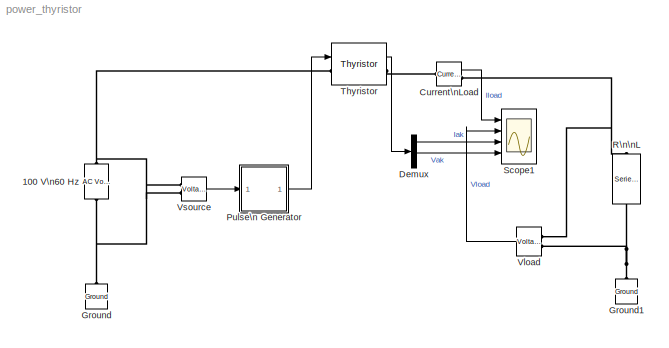
MODEL power_thyristor
KIND model
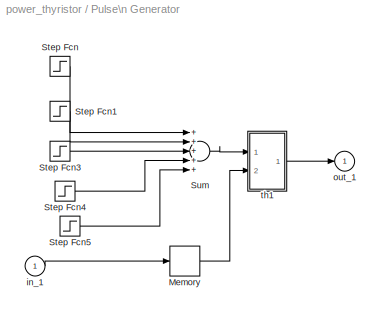
BLOCK [SubSystem]  Pulse\n Generator
  MaskDisplay = plot(0,0,100,100,[90,75,75,60,60,35,35,20,20,10],[20,20,80,80,20,20,80,80,20,20])
  MaskIconFrame = on
  MaskIconOpaque = on
  MaskIconRotate = none
  MaskIconUnits = autoscale
  MinAlgLoopOccurrences = off
  Ports = [1, 1]
  RTWSystemCode = Auto
  ShowPortLabels = off
  TreatAsAtomicUnit = off
BLOCK [Memory]  Pulse\n Generator/Memory
BLOCK [Step]  Pulse\n Generator/Step Fcn
  After = 20
  Before = 20
  SampleTime = 0
  Time = 1/60
BLOCK [Step]  Pulse\n Generator/Step Fcn1
  After = 30
  SampleTime = 0
  Time = 1/60
BLOCK [Step]  Pulse\n Generator/Step Fcn3
  After = 30
  SampleTime = 0
  Time = 2/60
BLOCK [Step]  Pulse\n Generator/Step Fcn4
  After = 30
  SampleTime = 0
  Time = 3/60
BLOCK [Step]  Pulse\n Generator/Step Fcn5
  After = 30
  SampleTime = 0
  Time = 4/60
BLOCK [Sum]  Pulse\n Generator/Sum
  Inputs = +++++
  Ports = [5, 1]
BLOCK [Inport]  Pulse\n Generator/in_1
  IconDisplay = Port number
  LatchInput = off
  Port = 1
BLOCK [Outport]  Pulse\n Generator/out_1
  IconDisplay = Port number
  InitialOutput = 0
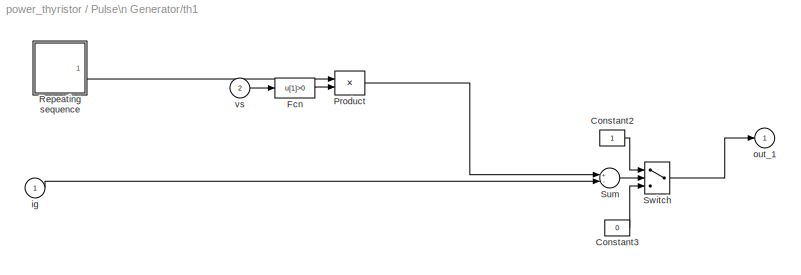
BLOCK [SubSystem]  Pulse\n Generator/th1
  MinAlgLoopOccurrences = off
  Ports = [2, 1]
  RTWSystemCode = Auto
  ShowPortLabels = off
  TreatAsAtomicUnit = off
BLOCK [Constant]  Pulse\n Generator/th1/Constant2
BLOCK [Constant]  Pulse\n Generator/th1/Constant3
  Value = 0
BLOCK [Fcn]  Pulse\n Generator/th1/Fcn
  Expr = u[1]>0
BLOCK [Product]  Pulse\n Generator/th1/Product
  Ports = [2, 1]
  RndMeth = Floor
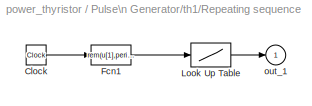
BLOCK [SubSystem]  Pulse\n Generator/th1/Repeating sequence
  MaskCallbackString = |
  MaskDescription = Repeating table.\nEnter values of time and output for first cycle.
  MaskDisplay = plot([t,t+period,t+2*period],[y,y,y])
  MaskEnableString = on,on
  MaskHelp = Repeats cycle given in table. Time values should be monotonically increasing.
  MaskIconFrame = on
  MaskIconOpaque = on
  MaskIconRotate = none
  MaskIconUnits = autoscale
  MaskInitialization = period = max(@1); t = @1; y = @2;
  MaskPromptString = Time values:|Output values:
  MaskStyleString = edit,edit
  MaskTabNameString = ,
  MaskToolTipString = on,on
  MaskTunableValueString = on,on
  MaskType = Repeating table
  MaskValueString = [0 1/60 ]|[0 360 ]
  MaskVarAliasString = ,
  MaskVisibilityString = on,on
  MinAlgLoopOccurrences = off
  Ports = [0, 1]
  RTWSystemCode = Auto
  ShowPortLabels = off
  TreatAsAtomicUnit = off
BLOCK [Clock]  Pulse\n Generator/th1/Repeating sequence/Clock
  Decimation = 10
BLOCK [Fcn]  Pulse\n Generator/th1/Repeating sequence/Fcn1
  Expr = rem(u[1],period)
BLOCK [Lookup]  Pulse\n Generator/th1/Repeating sequence/Look Up Table
  DialogController = Simulink.DDGSource
  InputValues = t
  OutputValues = y
BLOCK [Outport]  Pulse\n Generator/th1/Repeating sequence/out_1
  IconDisplay = Port number
  InitialOutput = 0
BLOCK [Sum]  Pulse\n Generator/th1/Sum
  Inputs = +-
  Ports = [2, 1]
BLOCK [Switch]  Pulse\n Generator/th1/Switch
BLOCK [Inport]  Pulse\n Generator/th1/ig
  IconDisplay = Port number
  LatchInput = off
  Port = 1
BLOCK [Outport]  Pulse\n Generator/th1/out_1
  IconDisplay = Port number
  InitialOutput = 0
BLOCK [Inport]  Pulse\n Generator/th1/vs
  IconDisplay = Port number
  LatchInput = off
  Port = 2
BLOCK [Reference] 100 V\n60 Hz  REF=powerlib/Electrical\nSources/AC Voltage Source
  Amplitude = 100
  AttributesFormatString = \\n
  Description = source block
  Frequency = 60
  Measurements = None
  Phase = 0
  Ports = [0, 0, 0, 0, 0, 1, 1]
  SampleTime = 0
  SourceBlock = powerlib/Electrical\nSources/AC Voltage Source
  SourceType = AC Voltage Source
BLOCK [Reference] Current\nLoad  REF=powerlib/Measurements/Current Measurement
  AttributesFormatString = \\n
  OutputType = Magnitude
  PSBequivalent = 0
  PhasorSimulation = off
  Ports = [0, 1, 0, 0, 0, 1, 1]
  SourceBlock = powerlib/Measurements/Current Measurement
  SourceType = Current Measurement
  Tag = PoWeRsYsTeMmEaSuReMeNt
BLOCK [Demux] Demux
  Outputs = 2
  Ports = [1, 2]
BLOCK [Reference] Ground  REF=powerlib/Elements/Ground
  AttributesFormatString = \\n
  LConnTagsString = a
  PhysicalDomain = powersysdomain
  PortType = p1
  Ports = [0, 0, 0, 0, 0, 1]
  SourceBlock = powerlib/Elements/Ground
  SourceType = Ground
  SubClassName = unknown
BLOCK [Reference] Ground1  REF=powerlib/Elements/Ground
  AttributesFormatString = \\n
  LConnTagsString = a
  PhysicalDomain = powersysdomain
  PortType = p1
  Ports = [0, 0, 0, 0, 0, 1]
  SourceBlock = powerlib/Elements/Ground
  SourceType = Ground
  SubClassName = unknown
BLOCK [Reference] R\n\nL  REF=powerlib/Elements/Series RLC Branch
  AttributesFormatString = \\n
  Capacitance = inf
  Inductance = 10e-03
  LConnTagsString = __new0
  Measurements = None
  PhysicalDomain = powersysdomain
  PortType = p1
  Ports = [0, 0, 0, 0, 0, 1, 1]
  RConnTagsString = __new0
  Resistance = 1
  SourceBlock = powerlib/Elements/Series RLC Branch
  SourceType = Series RLC Branch
  SubClassName = unknown
BLOCK [Scope] Scope1
  DataFormat = Array
  LimitDataPoints = off
  NumInputPorts = 4
  Ports = [4]
  TimeRange = 0.1
  YMax = 50~100~40~200
  YMin = -50~-100~0~-200
BLOCK [Reference] Thyristor  REF=powerlib/Power\nElectronics/Thyristor
  AttributesFormatString = \\n
  Cs = 4e-6
  IC = 0
  Lon = 0
  Measurements = on
  Ports = [1, 1, 0, 0, 0, 1, 1]
  Ron = 1e-3
  Rs = 20
  SourceBlock = powerlib/Power\nElectronics/Thyristor
  SourceType = Thyristor
  Vf = 0.8
BLOCK [Reference] Vload  REF=powerlib/Measurements/Voltage Measurement
  AttributesFormatString = \\n
  OutputType = Magnitude
  PSBequivalent = 0
  PhasorSimulation = off
  Ports = [0, 1, 0, 0, 0, 2]
  SourceBlock = powerlib/Measurements/Voltage Measurement
  SourceType = Voltage Measurement
  Tag = PoWeRsYsTeMmEaSuReMeNt
BLOCK [Reference] Vsource  REF=powerlib/Measurements/Voltage Measurement
  AttributesFormatString = \\n
  OutputType = Magnitude
  PSBequivalent = 0
  PhasorSimulation = off
  Ports = [0, 1, 0, 0, 0, 2]
  SourceBlock = powerlib/Measurements/Voltage Measurement
  SourceType = Voltage Measurement
  Tag = PoWeRsYsTeMmEaSuReMeNt
LINE  Pulse\n Generator/Memory:1 ->  Pulse\n Generator/th1:2
LINE  Pulse\n Generator/Step Fcn1:1 ->  Pulse\n Generator/Sum:2
LINE  Pulse\n Generator/Step Fcn3:1 ->  Pulse\n Generator/Sum:3
LINE  Pulse\n Generator/Step Fcn4:1 ->  Pulse\n Generator/Sum:4
LINE  Pulse\n Generator/Step Fcn5:1 ->  Pulse\n Generator/Sum:5
LINE  Pulse\n Generator/Step Fcn:1 ->  Pulse\n Generator/Sum:1
LINE  Pulse\n Generator/Sum:1 ->  Pulse\n Generator/th1:1
LINE  Pulse\n Generator/in_1:1 ->  Pulse\n Generator/Memory:1
LINE  Pulse\n Generator/th1/Constant2:1 ->  Pulse\n Generator/th1/Switch:1
LINE  Pulse\n Generator/th1/Constant3:1 ->  Pulse\n Generator/th1/Switch:3
LINE  Pulse\n Generator/th1/Fcn:1 ->  Pulse\n Generator/th1/Product:2
LINE  Pulse\n Generator/th1/Product:1 ->  Pulse\n Generator/th1/Sum:1
LINE  Pulse\n Generator/th1/Repeating sequence/Clock:1 ->  Pulse\n Generator/th1/Repeating sequence/Fcn1:1
LINE  Pulse\n Generator/th1/Repeating sequence/Fcn1:1 ->  Pulse\n Generator/th1/Repeating sequence/Look Up Table:1
LINE  Pulse\n Generator/th1/Repeating sequence/Look Up Table:1 ->  Pulse\n Generator/th1/Repeating sequence/out_1:1
LINE  Pulse\n Generator/th1/Repeating sequence:1 ->  Pulse\n Generator/th1/Product:1
LINE  Pulse\n Generator/th1/Sum:1 ->  Pulse\n Generator/th1/Switch:2
LINE  Pulse\n Generator/th1/Switch:1 ->  Pulse\n Generator/th1/out_1:1
LINE  Pulse\n Generator/th1/ig:1 ->  Pulse\n Generator/th1/Sum:2
LINE  Pulse\n Generator/th1/vs:1 ->  Pulse\n Generator/th1/Fcn:1
LINE  Pulse\n Generator/th1:1 ->  Pulse\n Generator/out_1:1
LINE  Pulse\n Generator:1 -> Thyristor:1
LINE Current\nLoad:1 -> Scope1:1
LINE Demux:1 -> Scope1:3
LINE Demux:2 -> Scope1:4
LINE Thyristor:1 -> Demux:1
LINE Vload:1 -> Scope1:2
LINE Vsource:1 ->  Pulse\n Generator:1
PNET net1: 100 V\n60 Hz:LConn1 -- Ground:LConn1 -- Vsource:LConn2
PNET net2: 100 V\n60 Hz:RConn1 -- Thyristor:LConn1 -- Vsource:LConn1
PLINE Current\nLoad:LConn1 -- Thyristor:RConn1
PNET net3: Current\nLoad:RConn1 -- R\n\nL:LConn1 -- Vload:LConn1
PNET net4: Ground1:LConn1 -- R\n\nL:RConn1 -- Vload:LConn2
note: PNET lines group multi-terminal physical nets as a canonical sorted terminal list (undirected conserving connections); 2-terminal nets keep the pairwise PLINE form
